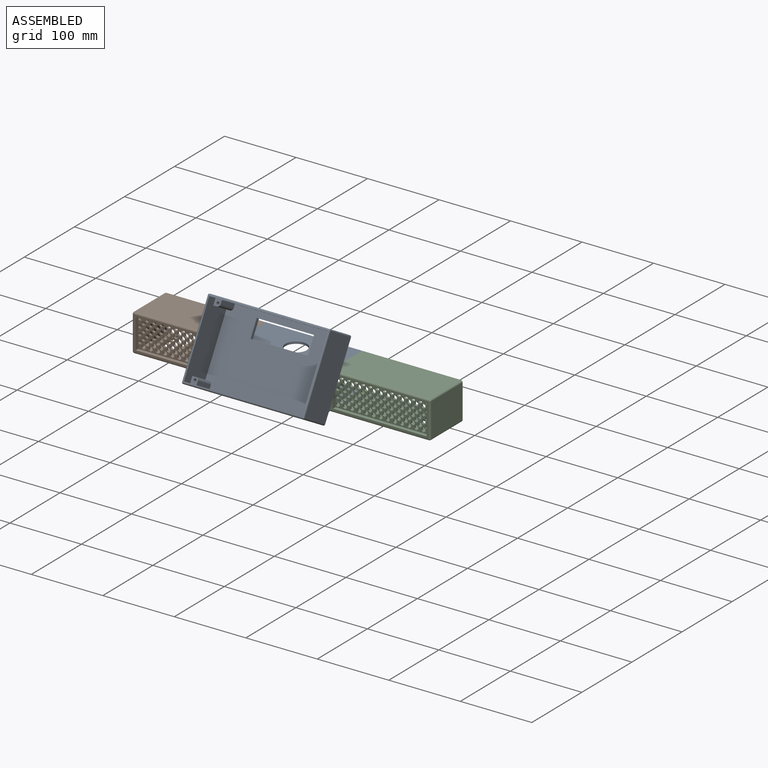
[diagram: assembled view]
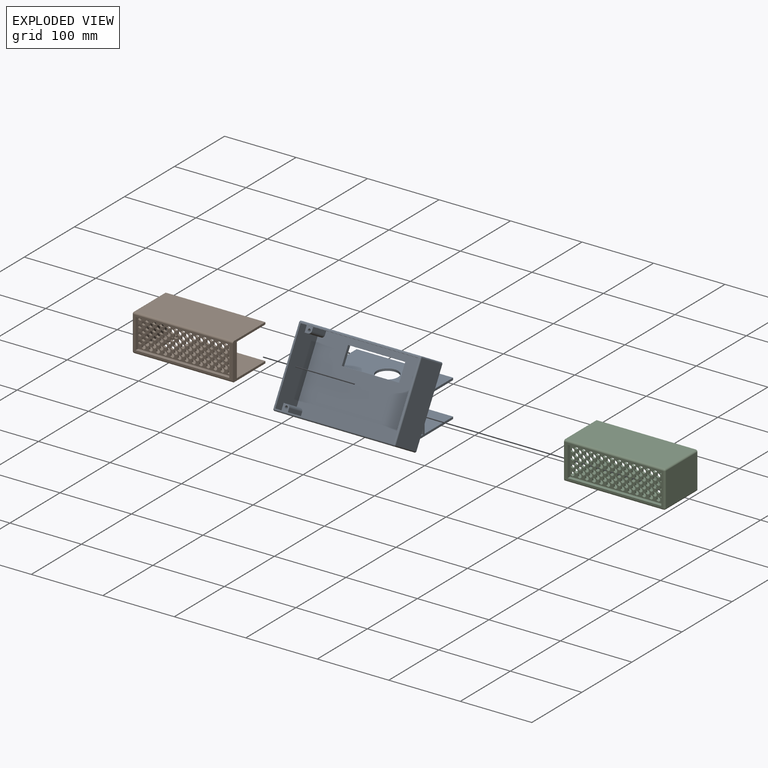
[diagram: exploded view]
GUIDED TOUR — FREECAD ASSEMBLY "artillery sidewinder x2 front profile"

This assembly has 3 components, labeled P0..P2 below (a component is one placed body or linked part; the same part can appear more than once), held together by 2 modeled joints. A joint is a constraint between two components; its type names the relative motion it leaves free:
  FASTENED — locks the two components together rigidly (no relative motion).
Axis/direction vectors are unit vectors and 'through' points are millimeter coordinates, both in the assembly's world frame.

MATES
  1. FASTENED [Fixed] "Fijo": P0 <-> P1, direction (1.000, 0.000, 0.000) through (0.00, 10.35, -23.10) mm
  2. FASTENED [Fixed] "Fijo001": P0 <-> P2, direction (1.000, 0.000, 0.000) through (135.00, 10.35, -23.10) mm

ASSEMBLY ORDER
  1. P1 — the base component [order verified]
  2. P0 [order verified]
  3. P2 [order verified]
Order-tag legend:
  [order verified] — this step's position reverses a verified removal order: the component was checked to insert without passing through the ones already placed.

Of the 3 components, 1 carries a construction recipe — the FreeCAD feature program (sketches with constraints, then the solid features that consume them) that regenerates the part from scratch, quoted from this document or from the linked companion document it references; the rest are supplied as boundary geometry only. The tour below walks the components in assembly order: each is shown spotlighted twice — in the assembled view, then in the exploded view, where a leader line traces a displaced component back to its assembled socket (components that stay in place when exploded have no leader line; saturated green if recipe-attached, orange if geometry-only; every other component desaturated gray) — followed by its recipe or geometry summary and the mates that hold it.
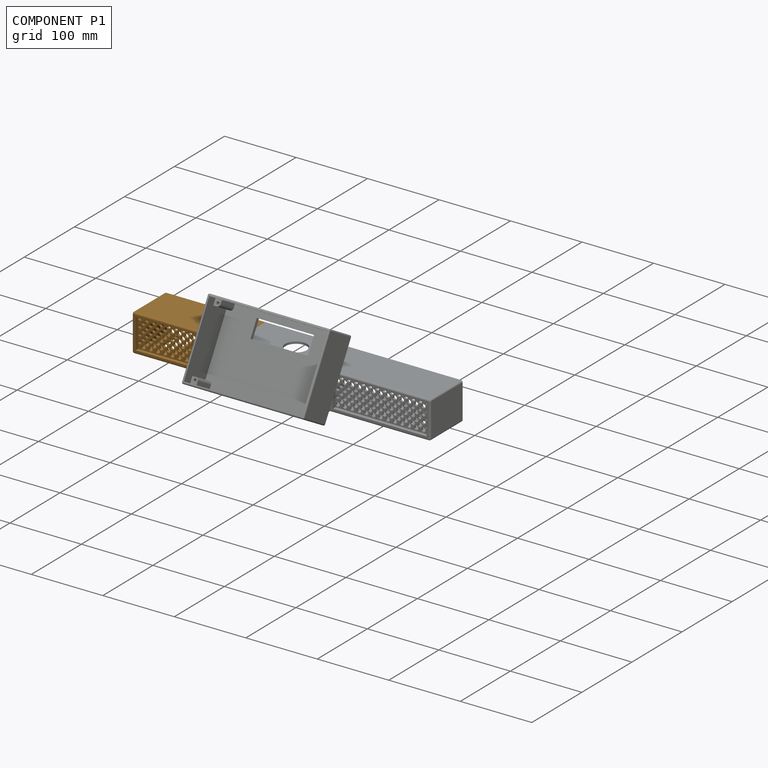
[diagram: component P1 — assembled]
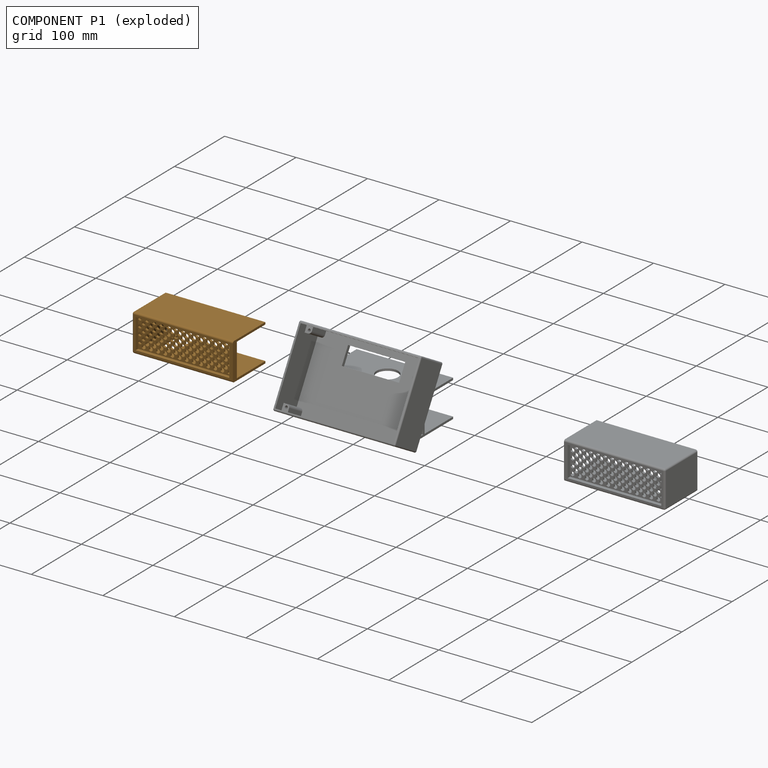
[diagram: component P1 — exploded]
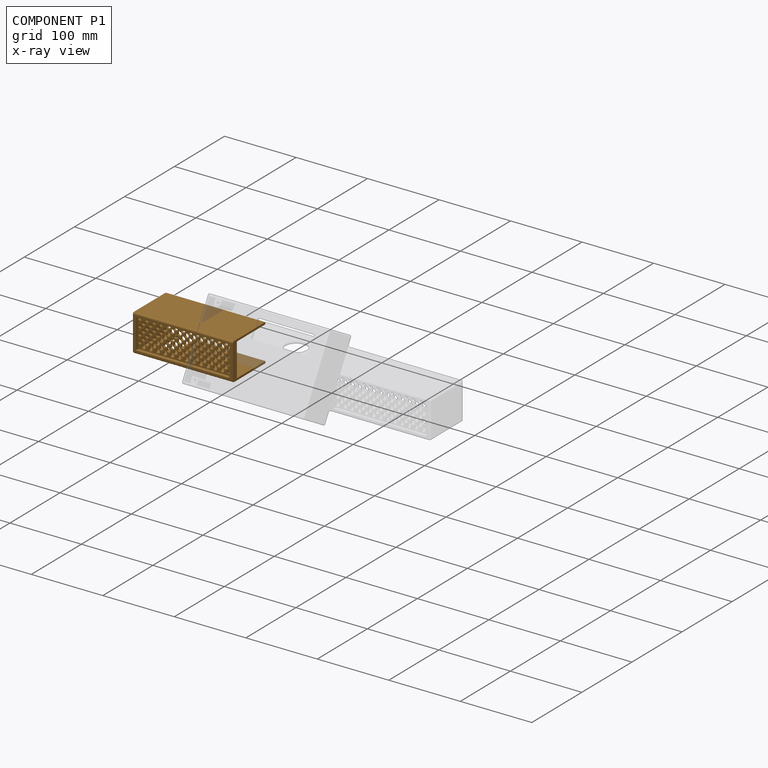
[diagram: component P1 — x-ray view]
COMPONENT P1 — geometry summary ("left side profile001"; no construction recipe available for this part):
  bounding box: 141.0 x 65.0 x 52.2 mm
  tessellated surface: 5,828 triangles
  volume: 77151 mm^3 (16% of its bounding box)
Held by: FASTENED mate "Fijo" to P0.
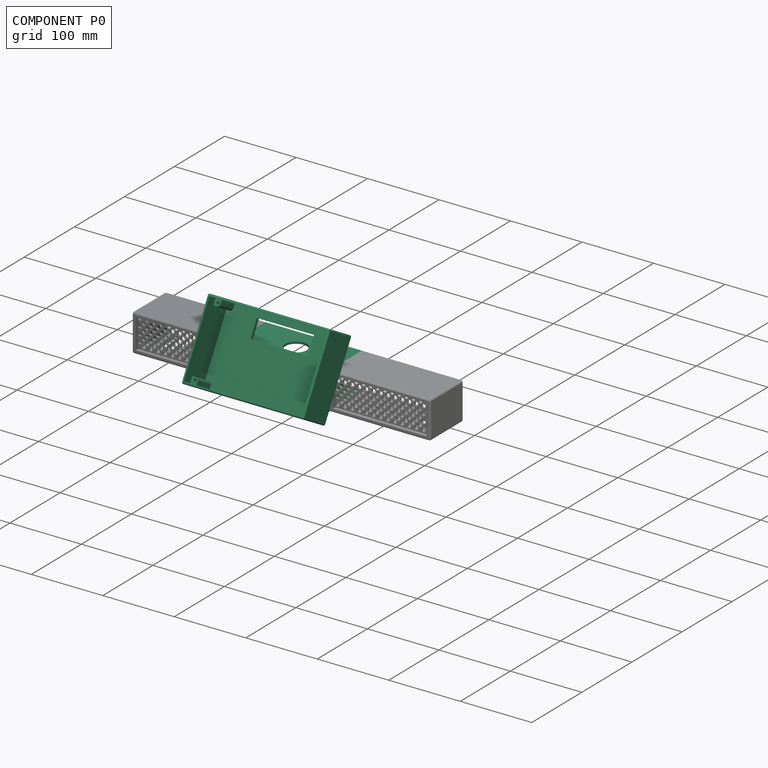
[diagram: component P0 — assembled]
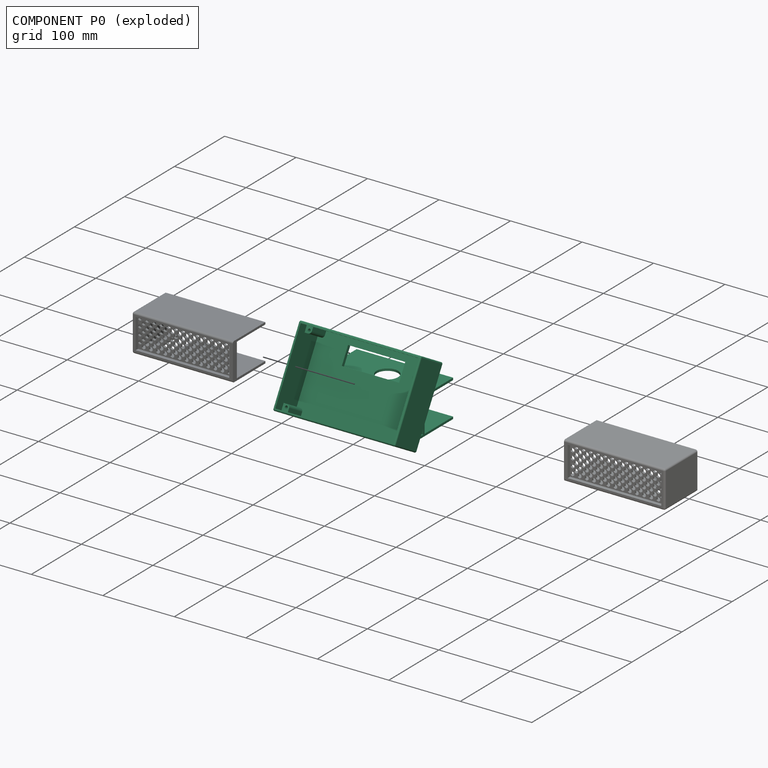
[diagram: component P0 — exploded]
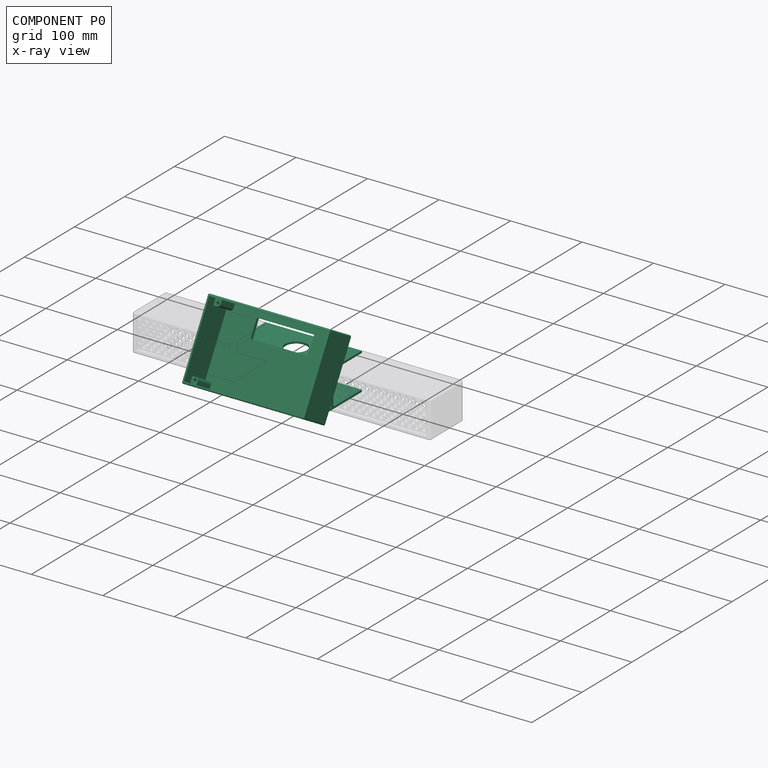
[diagram: component P0 — x-ray view]
COMPONENT P0 — recipe-attached ("front profile001", modeled in this document).
Held by: FASTENED mate "Fijo" to P1; FASTENED mate "Fijo001" to P2.
Construction recipe (the document's own serialized feature program — sketch geometry with constraints, then the solid features built on it; lengths are millimeters unless a unit is written):

FEATURE [Sketcher::SketchObject] Sketch004
  ArcFitTolerance = 1e-06
  AttachmentSupport = -> [YZ_Plane002]
  FullyConstrained = false
  MakeInternals = false
  MapMode = 5
  Placement = pos=(0,0,0) rot=(0.57735,0.57735,0.57735;2.0944rad)
  sketch-geometry (17):
    g0: LineSegment [constr] StartX=-49.6455 StartY=26.1 StartZ=0 EndX=-49.6455 EndY=-26.1 EndZ=0
    g1: LineSegment StartX=-60 StartY=26.1 StartZ=0 EndX=-36.0187 EndY=67.6369 EndZ=0
    g2: LineSegment StartX=-36.0187 StartY=67.6369 StartZ=0 EndX=-40.3488 EndY=70.1369 EndZ=0
    g3: LineSegment StartX=-89.66 StartY=-26.1 StartZ=0 EndX=-93.9901 EndY=-23.6 EndZ=0
    g4: LineSegment [constr] StartX=-60.0006 StartY=26.099 StartZ=0 EndX=-89.6404 EndY=-26.0656 EndZ=0
    g5: LineSegment StartX=-93.9901 StartY=-23.6 StartZ=0 EndX=-40.3488 EndY=70.1369 EndZ=0
    g6: LineSegment StartX=-87.9554 StartY=-23.1 StartZ=0 EndX=-49.6455 EndY=-23.1 EndZ=0
    g7: LineSegment StartX=-49.6455 StartY=23.1 StartZ=0 EndX=-61.7046 EndY=23.1 EndZ=0
    g8: LineSegment StartX=-61.7046 StartY=23.1 StartZ=0 EndX=-87.9554 EndY=-23.1 EndZ=0
    g9: LineSegment StartX=-49.6455 StartY=-23.1 StartZ=0 EndX=-49.6455 EndY=23.1 EndZ=0
    g10: LineSegment StartX=-60 StartY=26.1 StartZ=0 EndX=10.3545 EndY=26.1 EndZ=0
    g11: LineSegment StartX=-89.66 StartY=-26.1 StartZ=0 EndX=10.3545 EndY=-26.1 EndZ=0
    g12: LineSegment StartX=-46.6455 StartY=23.1 StartZ=0 EndX=-46.6455 EndY=-23.1 EndZ=0
    g13: LineSegment StartX=-46.6455 StartY=-23.1 StartZ=0 EndX=10.3545 EndY=-23.1 EndZ=0
    g14: LineSegment StartX=-46.6455 StartY=23.1 StartZ=0 EndX=10.3545 EndY=23.1 EndZ=0
    g15: LineSegment StartX=10.3545 StartY=23.1 StartZ=0 EndX=10.3545 EndY=26.1 EndZ=0
    g16: LineSegment StartX=10.3545 StartY=-23.1 StartZ=0 EndX=10.3545 EndY=-26.1 EndZ=0
  constraints (44):
    c: Vertical(g0)
    c: Angle(g-1,g1) = 1.0472
    c: Coincident(g2,g1)
    c: Parallel(g2,g3)
    c: Perpendicular(g1,g2)
    c: Equal(g3,g2)
    c: Distance(g2,g2) = 5
    c: Coincident(g5,g3)
    c: Coincident(g5,g2)
    c: PointOnObject(g6,g4)
    c: PointOnObject(g6,g0)
    c: Horizontal(g6)
    c: PointOnObject(g7,g0)
    c: PointOnObject(g7,g4)
    c: Coincident(g8,g7)
    c: Coincident(g8,g6)
    c: Coincident(g9,g6)
    c: Coincident(g9,g7)
    c: Horizontal(g7)
    c: Distance(g3,g6) = 3
    c: Distance(g3,g1) = 108
    c: Block(g5)
    c: Block(g8)
    c: Coincident(g10,g1)
    c: Horizontal(g10)
    c: Coincident(g11,g3)
    c: Horizontal(g11)
    c: Coincident(g13,g12)
    c: Horizontal(g13)
    c: Coincident(g14,g12)
    c: Horizontal(g14)
    c: Vertical(g12)
    c: DistanceX(g13,g13) = 57
    c: Distance(g9,g12) = 3
    c: Horizontal(g12,g7)
    c: Horizontal(g12,g6)
    c: DistanceX(g14,g14) = 57
    c: Coincident(g15,g14)
    c: Coincident(g15,g10)
    c: Coincident(g16,g13)
    c: Coincident(g16,g11)
    c: Vertical(g16)
    c: Vertical(g15)
    c: DistanceY(g15,g15) = 3
FEATURE [PartDesign::Pad] Pad002
  Direction = (1,0,0)
  Length = 135
  Length2 = 10
  Placement = pos=(0,0,0) rot=(1,1,1;2.0944rad)
  Profile = -> Sketch004
  ReferenceAxis = -> Sketch004 [N_Axis]
  Refine = true
  Suppressed = false
  Type = 0
FEATURE [Sketcher::SketchObject] Sketch005
  ArcFitTolerance = 1e-06
  AttachmentSupport = -> [Pad002]
  ExternalGeometry = -> [Pad002]
  FullyConstrained = true
  MakeInternals = false
  MapMode = 5
  Placement = pos=(0,0,0) rot=(0.57735,0.57735,-0.57735;4.18879rad)
  sketch-geometry (4):
    g0: LineSegment StartX=-93.9901 StartY=23.6 StartZ=0 EndX=-40.3488 EndY=-70.1369 EndZ=0
    g1: LineSegment StartX=-36.0187 StartY=-67.6369 StartZ=0 EndX=-40.3488 EndY=-70.1369 EndZ=0
    g2: LineSegment StartX=-36.0187 StartY=-67.6369 StartZ=0 EndX=-89.66 EndY=26.1 EndZ=0
    g3: LineSegment StartX=-93.9901 StartY=23.6 StartZ=0 EndX=-89.66 EndY=26.1 EndZ=0
  constraints (9):
    c: Coincident(g0,g-3)
    c: Coincident(g0,g-4)
    c: Coincident(g1,g-4)
    c: Coincident(g1,g0)
    c: Coincident(g2,g1)
    c: Coincident(g3,g0)
    c: Coincident(g3,g2)
    c: Parallel(g3,g1)
    c: Parallel(g2,g0)
FEATURE [PartDesign::Pad] Pad003
  BaseFeature = -> Pad002
  Direction = (-1,0,0)
  Length = 17.95
  Length2 = 10
  Placement = pos=(0,0,0) rot=(1,1,1;2.0944rad)
  Profile = -> Sketch005
  ReferenceAxis = -> Sketch005 [N_Axis]
  Refine = true
  Suppressed = false
  Type = 0
  expr: Length = (164.9 - 135) / 2 + 3
FEATURE [Sketcher::SketchObject] Sketch006
  ArcFitTolerance = 1e-06
  AttachmentSupport = -> [Pad003]
  ExternalGeometry = -> [Pad003]
  FullyConstrained = true
  MakeInternals = false
  MapMode = 5
  Placement = pos=(135,0,0) rot=(0.57735,0.57735,0.57735;2.0944rad)
  sketch-geometry (4):
    g0: LineSegment StartX=-40.3488 StartY=70.1369 StartZ=0 EndX=-36.0187 EndY=67.6369 EndZ=0
    g1: LineSegment StartX=-40.3488 StartY=70.1369 StartZ=0 EndX=-93.9901 EndY=-23.6 EndZ=0
    g2: LineSegment StartX=-36.0187 StartY=67.6369 StartZ=0 EndX=-89.66 EndY=-26.1 EndZ=0
    g3: LineSegment StartX=-89.66 StartY=-26.1 StartZ=0 EndX=-93.9901 EndY=-23.6 EndZ=0
  constraints (9):
    c: Coincident(g0,g-4)
    c: Coincident(g0,g-4)
    c: Coincident(g1,g0)
    c: Coincident(g1,g-3)
    c: Coincident(g2,g0)
    c: Coincident(g3,g2)
    c: Coincident(g3,g1)
    c: Parallel(g2,g1)
    c: Parallel(g3,g0)
FEATURE [PartDesign::Pad] Pad004
  BaseFeature = -> Pad003
  Direction = (1,0,0)
  Length = 17.95
  Length2 = 10
  Placement = pos=(0,0,0) rot=(1,1,1;2.0944rad)
  Profile = -> Sketch006
  ReferenceAxis = -> Sketch006 [N_Axis]
  Refine = true
  Suppressed = false
  Type = 0
  expr: Length = (164.9 - 135) / 2 + 3
FEATURE [Sketcher::SketchObject] Sketch007
  ArcFitTolerance = 1e-06
  AttachmentSupport = -> [Pad004]
  ExternalGeometry = -> [Pad004]
  FullyConstrained = false
  MakeInternals = false
  MapMode = 5
  Placement = pos=(-3.63e-14,-60.6301,34.6958) rot=(0.448399,0.448399,-0.773225;1.82519rad)
  sketch-geometry (26):
    g0: LineSegment StartX=67.1662 StartY=-17.95 StartZ=0 EndX=67.1662 EndY=152.95 EndZ=0
    g1: LineSegment StartX=67.1662 StartY=152.95 StartZ=0 EndX=-40.8338 EndY=152.95 EndZ=0
    g2: LineSegment StartX=-40.8338 StartY=152.95 StartZ=0 EndX=-40.8338 EndY=-17.95 EndZ=0
    g3: LineSegment StartX=-40.8338 StartY=-17.95 StartZ=0 EndX=67.1662 EndY=-17.95 EndZ=0
    g4: LineSegment StartX=-37.8338 StartY=140.995 StartZ=0 EndX=-37.8338 EndY=-5.995 EndZ=0
    g5: LineSegment StartX=-28.8838 StartY=-14.95 StartZ=0 EndX=55.2162 EndY=-14.95 EndZ=0
    g6: LineSegment StartX=64.1662 StartY=-5.995 StartZ=0 EndX=64.1662 EndY=140.995 EndZ=0
    g7: LineSegment StartX=55.2162 StartY=149.95 StartZ=0 EndX=-28.8838 EndY=149.95 EndZ=0
    g8: LineSegment [constr] StartX=13.1662 StartY=167.324 StartZ=0 EndX=13.1662 EndY=-51.66 EndZ=0
    g9: LineSegment [constr] StartX=-85.0664 StartY=67.5 StartZ=0 EndX=84.919 EndY=67.5 EndZ=0
    g10: Circle CenterX=-32.8338 CenterY=144.945 CenterZ=0 NormalX=0 NormalY=0 NormalZ=1 AngleXU=0 Radius=1.95
    g11: Circle CenterX=59.1662 CenterY=144.945 CenterZ=0 NormalX=0 NormalY=0 NormalZ=1 AngleXU=0 Radius=1.95
    g12: Circle CenterX=-32.8338 CenterY=-9.945 CenterZ=0 NormalX=0 NormalY=0 NormalZ=1 AngleXU=0 Radius=1.95
    g13: Circle CenterX=59.1662 CenterY=-9.945 CenterZ=0 NormalX=0 NormalY=0 NormalZ=1 AngleXU=0 Radius=1.95
    g14: ArcOfCircle CenterX=-32.8338 CenterY=-9.945 CenterZ=0 NormalX=0 NormalY=0 NormalZ=1 AngleXU=0 Radius=3.95 StartAngle=-1.8e-15 EndAngle=1.5708
    g15: ArcOfCircle CenterX=59.1662 CenterY=-9.945 CenterZ=0 NormalX=0 NormalY=0 NormalZ=1 AngleXU=0 Radius=3.95 StartAngle=1.5708 EndAngle=3.14159
    g16: ArcOfCircle CenterX=59.1662 CenterY=144.945 CenterZ=0 NormalX=0 NormalY=0 NormalZ=1 AngleXU=0 Radius=3.95 StartAngle=3.14159 EndAngle=4.71239
    g17: ArcOfCircle CenterX=-32.8338 CenterY=144.945 CenterZ=0 NormalX=0 NormalY=0 NormalZ=1 AngleXU=0 Radius=3.95 StartAngle=4.71239 EndAngle=6.28319
    g18: LineSegment StartX=-28.8838 StartY=149.95 StartZ=0 EndX=-28.8838 EndY=144.945 EndZ=0
    g19: LineSegment StartX=-37.8338 StartY=140.995 StartZ=0 EndX=-32.8338 EndY=140.995 EndZ=0
    g20: LineSegment StartX=-37.8338 StartY=-5.995 StartZ=0 EndX=-32.8338 EndY=-5.995 EndZ=0
    g21: LineSegment StartX=55.2162 StartY=-14.95 StartZ=0 EndX=55.2162 EndY=-9.945 EndZ=0
    g22: LineSegment StartX=-28.8838 StartY=-9.945 StartZ=0 EndX=-28.8838 EndY=-14.95 EndZ=0
    g23: LineSegment StartX=59.1662 StartY=-5.995 StartZ=0 EndX=64.1662 EndY=-5.995 EndZ=0
    g24: LineSegment StartX=55.2162 StartY=144.945 StartZ=0 EndX=55.2162 EndY=149.95 EndZ=0
    g25: LineSegment StartX=59.1662 StartY=140.995 StartZ=0 EndX=64.1662 EndY=140.995 EndZ=0
  constraints (53):
    c: Coincident(g0,g1)
    c: Coincident(g1,g2)
    c: Coincident(g2,g3)
    c: Coincident(g3,g0)
    c: Vertical(g0)
    c: Vertical(g2)
    c: Horizontal(g1)
    c: Horizontal(g3)
    c: Coincident(g0,g-4)
    c: Coincident(g1,g-3)
    c: Vertical(g6)
    c: Horizontal(g5)
    c: Symmetric(g0,g0,g9)
    c: Symmetric(g0,g1,g8)
    c: Distance(g1,g7) = 3
    c: Symmetric(g10,g11,g8)
    c: Symmetric(g11,g13,g9)
    c: Symmetric(g13,g12,g8)
    c: Equal(g10,g11)
    c: Equal(g11,g12)
    c: Equal(g12,g13)
    c: DistanceY(g12,g10) = 154.89
    c: DistanceX(g12,g13) = 92
    c: Diameter(g12) = 3.9
    c: Coincident(g14,g12)
    c: Coincident(g15,g13)
    c: Coincident(g16,g11)
    c: Coincident(g17,g10)
    c: Equal(g14,g15)
    c: Equal(g15,g16)
    c: Equal(g16,g17)
    c: Distance(g2,g4) = 3
    c: Vertical(g18)
    c: Horizontal(g19)
    c: Distance(g14,g12) = 2
    c: Horizontal(g20)
    c: Vertical(g21)
    c: Coincident(g14,g20)
    c: Coincident(g14,g22)
    c: Tangent(g15,g21) = 1.5708
    c: Coincident(g15,g23)
    c: Coincident(g16,g25)
    c: Coincident(g16,g24)
    c: Coincident(g17,g18)
    c: Coincident(g17,g19)
    c: Coincident(g7,g24)
    c: Coincident(g6,g25)
    c: Coincident(g7,g18)
    c: Coincident(g4,g19)
    c: Coincident(g4,g20)
    c: Coincident(g5,g22)
    c: Coincident(g5,g21)
    c: Coincident(g6,g23)
FEATURE [PartDesign::Pad] Pad005
  BaseFeature = -> Pad004
  Direction = (-1e-16,-0.867934,0.496679)
  Length = 30
  Length2 = 10
  Placement = pos=(0,0,0) rot=(1,1,1;2.0944rad)
  Profile = -> Sketch007
  ReferenceAxis = -> Sketch007 [N_Axis]
  Refine = true
  Suppressed = false
  Type = 0
FEATURE [Sketcher::SketchObject] Sketch008
  ArcFitTolerance = 1e-06
  AttachmentSupport = -> [Pad005]
  ExternalGeometry = -> [Pad005]
  FullyConstrained = true
  MakeInternals = false
  MapMode = 5
  Placement = pos=(-1.6e-14,-86.6681,49.5962) rot=(0.448399,0.448399,-0.773225;1.82519rad)
  sketch-geometry (8):
    g0: LineSegment StartX=67.1662 StartY=-17.95 StartZ=0 EndX=67.1662 EndY=152.95 EndZ=0
    g1: LineSegment StartX=67.1662 StartY=152.95 StartZ=0 EndX=-40.8338 EndY=152.95 EndZ=0
    g2: LineSegment StartX=-40.8338 StartY=152.95 StartZ=0 EndX=-40.8338 EndY=-17.95 EndZ=0
    g3: LineSegment StartX=-40.8338 StartY=-17.95 StartZ=0 EndX=67.1662 EndY=-17.95 EndZ=0
    g4: LineSegment StartX=64.1662 StartY=-14.95 StartZ=0 EndX=64.1662 EndY=149.95 EndZ=0
    g5: LineSegment StartX=64.1662 StartY=149.95 StartZ=0 EndX=-37.8338 EndY=149.95 EndZ=0
    g6: LineSegment StartX=-37.8338 StartY=149.95 StartZ=0 EndX=-37.8338 EndY=-14.95 EndZ=0
    g7: LineSegment StartX=-37.8338 StartY=-14.95 StartZ=0 EndX=64.1662 EndY=-14.95 EndZ=0
  constraints (22):
    c: Coincident(g0,g1)
    c: Coincident(g1,g2)
    c: Coincident(g2,g3)
    c: Coincident(g3,g0)
    c: Vertical(g0)
    c: Vertical(g2)
    c: Horizontal(g1)
    c: Horizontal(g3)
    c: Coincident(g0,g-5)
    c: Coincident(g1,g-4)
    c: Coincident(g4,g5)
    c: Coincident(g5,g6)
    c: Coincident(g6,g7)
    c: Coincident(g7,g4)
    c: Vertical(g4)
    c: Vertical(g6)
    c: Horizontal(g5)
    c: Horizontal(g7)
    c: PointOnObject(g5,g-3)
    c: PointOnObject(g6,g-6)
    c: PointOnObject(g4,g-8)
    c: PointOnObject(g4,g-7)
FEATURE [PartDesign::Pad] Pad006
  BaseFeature = -> Pad005
  Direction = (-1e-16,-0.867934,0.496679)
  Length = 14.35
  Length2 = 10
  Placement = pos=(0,0,0) rot=(1,1,1;2.0944rad)
  Profile = -> Sketch008
  ReferenceAxis = -> Sketch008 [N_Axis]
  Refine = true
  Suppressed = false
  Type = 0
FEATURE [PartDesign::Fillet] Fillet
  Base = -> Pad006 [Edge143,Edge13,Edge144,Edge59,Edge64,Edge61,Edge66,Edge11]
  BaseFeature = -> Pad006
  Placement = pos=(0,0,0) rot=(1,1,1;2.0944rad)
  Radius = 2
  Refine = true
  SupportTransform = false
  Suppressed = false
  UseAllEdges = false
FEATURE [Sketcher::SketchObject] Sketch009
  ArcFitTolerance = 1e-06
  AttachmentSupport = -> [Fillet]
  ExternalGeometry = -> [Fillet]
  FullyConstrained = false
  MakeInternals = false
  MapMode = 5
  Placement = pos=(-1.24e-14,-56.3016,32.5058) rot=(0.654654,0.654654,0.377964;3.86433rad)
  sketch-geometry (6):
    g0: LineSegment StartX=4.13752 StartY=107.5 StartZ=0 EndX=4.13752 EndY=27.5 EndZ=0
    g1: LineSegment StartX=4.13752 StartY=27.5 StartZ=0 EndX=29.1375 EndY=27.5 EndZ=0
    g2: LineSegment StartX=29.1375 StartY=27.5 StartZ=0 EndX=29.1375 EndY=107.5 EndZ=0
    g3: LineSegment StartX=29.1375 StartY=107.5 StartZ=0 EndX=4.13752 EndY=107.5 EndZ=0
    g4: LineSegment [constr] StartX=-58.3131 StartY=67.5 StartZ=0 EndX=123.417 EndY=67.5 EndZ=0
    g5: LineSegment [constr] StartX=16.6375 StartY=155.246 StartZ=0 EndX=16.6375 EndY=-46.6703 EndZ=0
  constraints (12):
    c: Coincident(g0,g1)
    c: Coincident(g1,g2)
    c: Coincident(g2,g3)
    c: Coincident(g3,g0)
    c: Vertical(g0)
    c: Horizontal(g1)
    c: DistanceX(g3,g3) = 25
    c: DistanceY(g2,g2) = 80
    c: Symmetric(g-3,g-3,g5)
    c: Symmetric(g-4,g-3,g4)
    c: Symmetric(g2,g1,g4)
    c: Symmetric(g0,g2,g5)
FEATURE [PartDesign::Pocket] Pocket
  BaseFeature = -> Fillet
  Direction = (0,-0.866025,0.5)
  Length = 5
  Length2 = 5
  Placement = pos=(0,0,0) rot=(1,1,1;2.0944rad)
  Profile = -> Sketch009
  ReferenceAxis = -> Sketch009 [N_Axis]
  Refine = true
  Suppressed = false
  Type = 2
FEATURE [Sketcher::SketchObject] Sketch016
  ArcFitTolerance = 1e-06
  AttachmentSupport = -> [Pocket]
  ExternalGeometry = -> [Pocket]
  FullyConstrained = false
  MakeInternals = false
  MapMode = 5
  Placement = pos=(0,5.7e-15,26.1) rot=(0,0,-1;1.5708rad)
  sketch-geometry (3):
    g0: LineSegment [constr] StartX=24.7169 StartY=156.261 StartZ=0 EndX=24.7169 EndY=-40.7732 EndZ=0
    g1: LineSegment [constr] StartX=-57.0307 StartY=67.5 StartZ=0 EndX=24.7169 EndY=67.5 EndZ=0
    g2: Circle CenterX=24.7169 CenterY=67.5 CenterZ=0 NormalX=0 NormalY=0 NormalZ=1 AngleXU=0 Radius=15
  constraints (5):
    c: Symmetric(g-3,g-3,g0)
    c: Symmetric(g-3,g-4,g1)
    c: PointOnObject(g1,g0)
    c: Coincident(g2,g1)
    c: Diameter(g2) = 30
FEATURE [PartDesign::Pocket] Pocket001
  BaseFeature = -> Pocket
  Direction = (0,0,-1)
  Length = 5
  Length2 = 5
  Placement = pos=(0,0,0) rot=(1,1,1;2.0944rad)
  Profile = -> Sketch016
  ReferenceAxis = -> Sketch016 [N_Axis]
  Refine = true
  Suppressed = false
  Type = 2
FEATURE [PartDesign::Pocket] Pocket002
  BaseFeature = -> Pocket001
  Direction = (-1.1e-15,-0.867934,0.496679)
  Length = 0
  Length2 = 5
  Placement = pos=(0,0,0) rot=(1,1,1;2.0944rad)
  Profile = -> Pocket001 [Edge173,Edge172,Edge170,Edge171]
  Refine = true
  Suppressed = false
  Type = 3
  UpToFace = -> Pocket001 [Face2]
FEATURE [PartDesign::Fillet] Fillet004
  Base = -> Pocket002 [Edge45,Edge28,Edge79,Edge82,Edge64,Edge80,Edge81,Edge78]
  BaseFeature = -> Pocket002
  Placement = pos=(0,0,0) rot=(1,1,1;2.0944rad)
  Radius = 2
  Refine = true
  SupportTransform = false
  Suppressed = false
  UseAllEdges = false
FEATURE [PartDesign::Body] Body002  label="front profile"
  AllowCompound = false
  Group = -> [Sketch004,Pad002,Sketch005,Pad003,Sketch006,Pad004,Sketch007,Pad005,Sketch008,Pad006,Fillet,Sketch009,Pocket,Sketch016,Pocket001,Pocket002,Fillet004]
  Origin = -> Origin002
  Tip = -> Fillet004
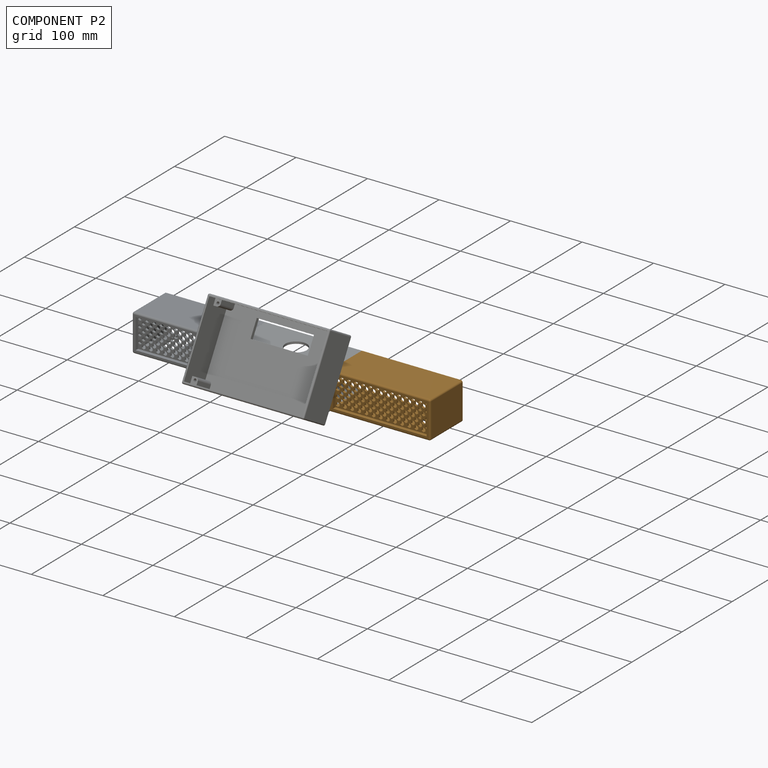
[diagram: component P2 — assembled]
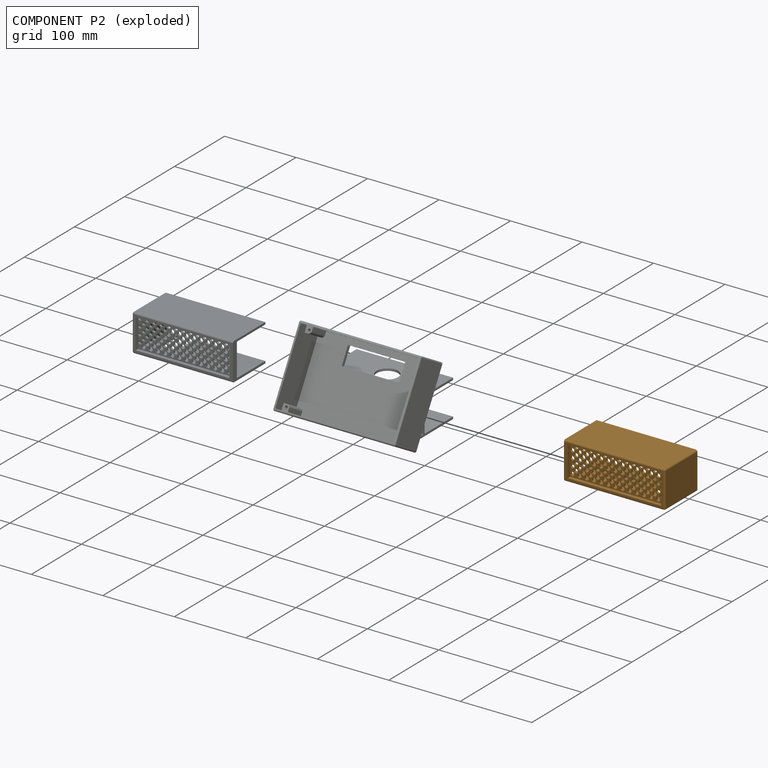
[diagram: component P2 — exploded]
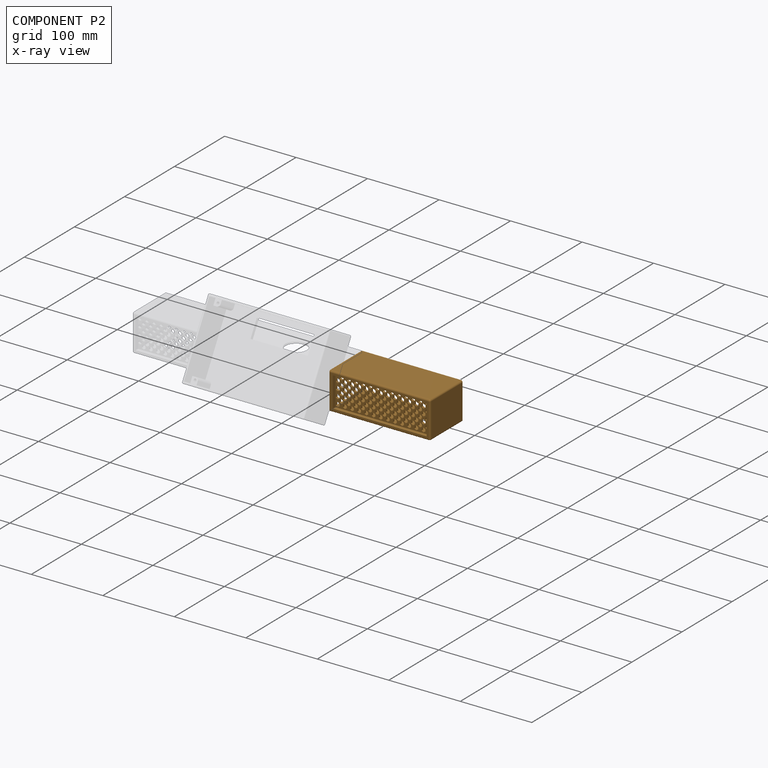
[diagram: component P2 — x-ray view]
COMPONENT P2 — geometry summary ("right side profile001"; no construction recipe available for this part):
  bounding box: 141.0 x 65.0 x 52.2 mm
  tessellated surface: 5,828 triangles
  volume: 77151 mm^3 (16% of its bounding box)
Held by: FASTENED mate "Fijo001" to P0.
PROVENANCE & LICENSES
Assembly and component geometry: a FreeCAD (.FCStd) document from a public repository crawl; components, placements and joints were extracted with FreeCAD and each solid tessellated.
Construction recipes: the document's own serialized feature recipes (and, for linked parts, the recipes of companion documents from the same project).
License: as declared in the source repository (recorded in the dataset sidecar).
Joints: native FreeCAD joints and A2plus constraints are mapped to standard mate types.
Verification: 1 of this assembly's 3 components carries a construction recipe (1 from this document itself); the rest are geometry-only. Every component's tessellation passed the extraction mesh gates (mesh-volume checksum against the B-rep where available, bounding-box inflation <= 2%).
Renders: orthographic iso camera (az 35 / el 25); the floor grid conveys scale (grid pitch printed in each image; no ruler). In the exploded view each component is displaced by its stored offset vector: the offsets alone carry the explosion direction (mate normal/axis signs are not orientation cues and do not encode it), and separation distances are assigned per mate-chain, not proportionally to assembly-order depth.
